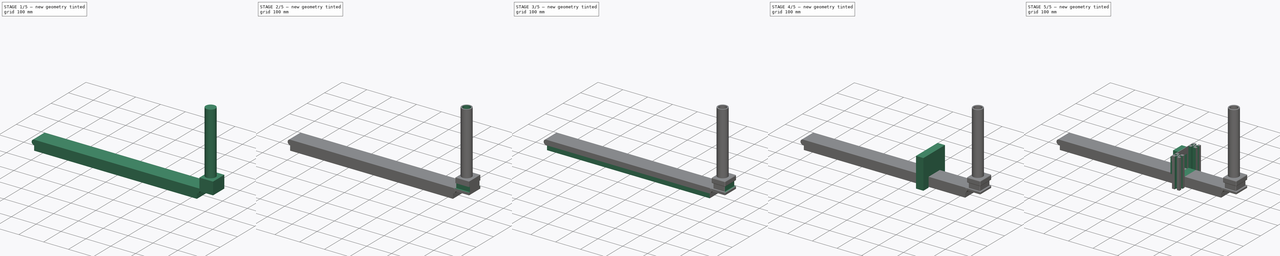
[diagram: build sequence overview — one tinted view per stage of 5, left to right]
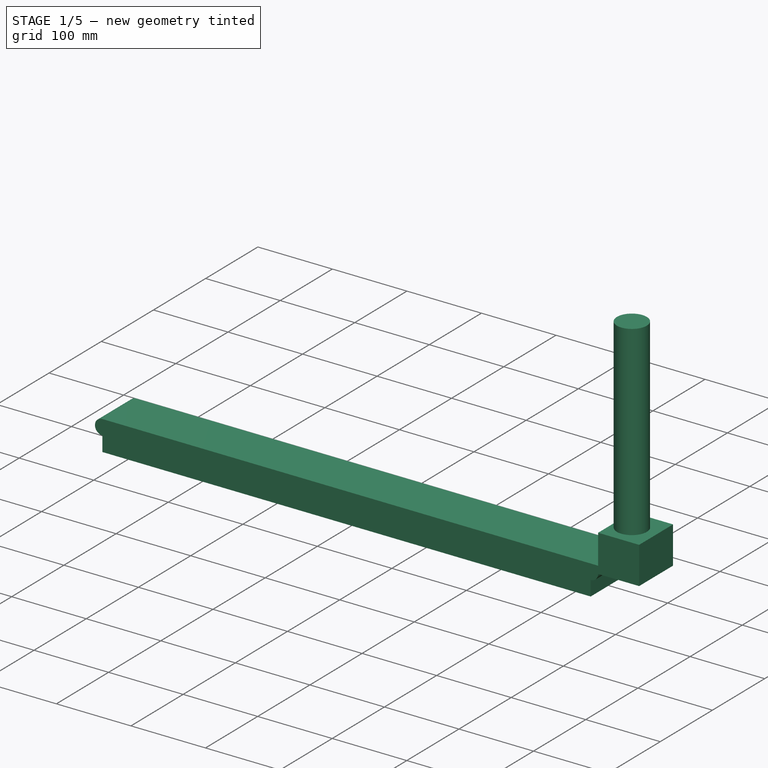
[diagram: stage 1 of 5 — iso view after this stage's code; geometry added in this stage tinted green]
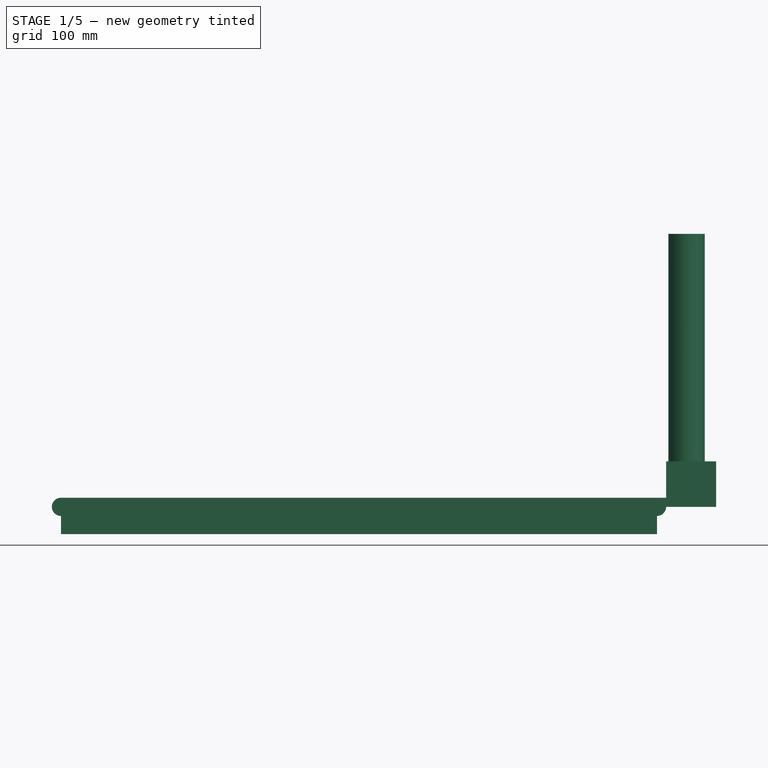
[diagram: stage 1 of 5 — front view after this stage's code; geometry added in this stage tinted green]
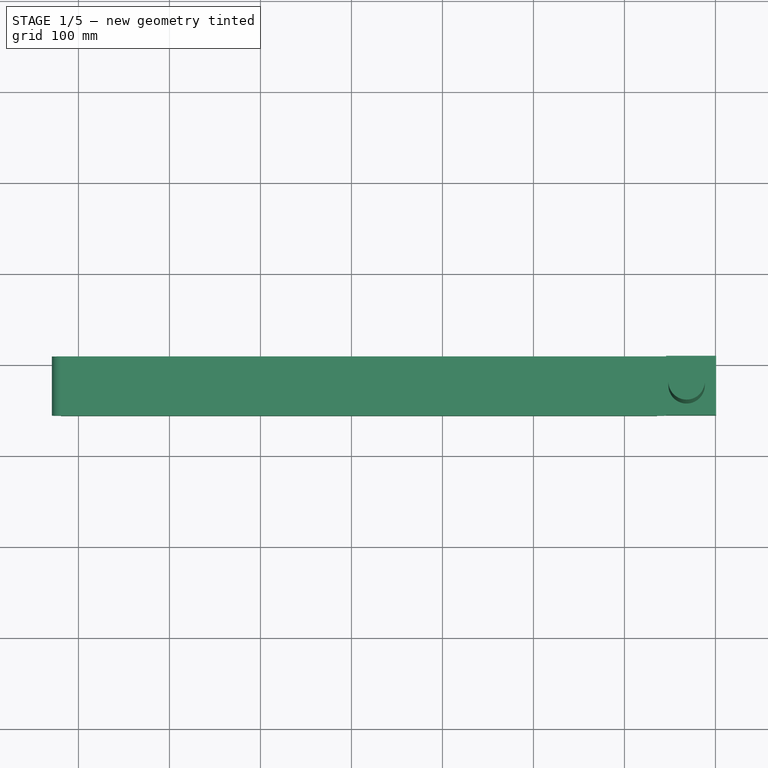
[diagram: stage 1 of 5 — top view after this stage's code; geometry added in this stage tinted green]
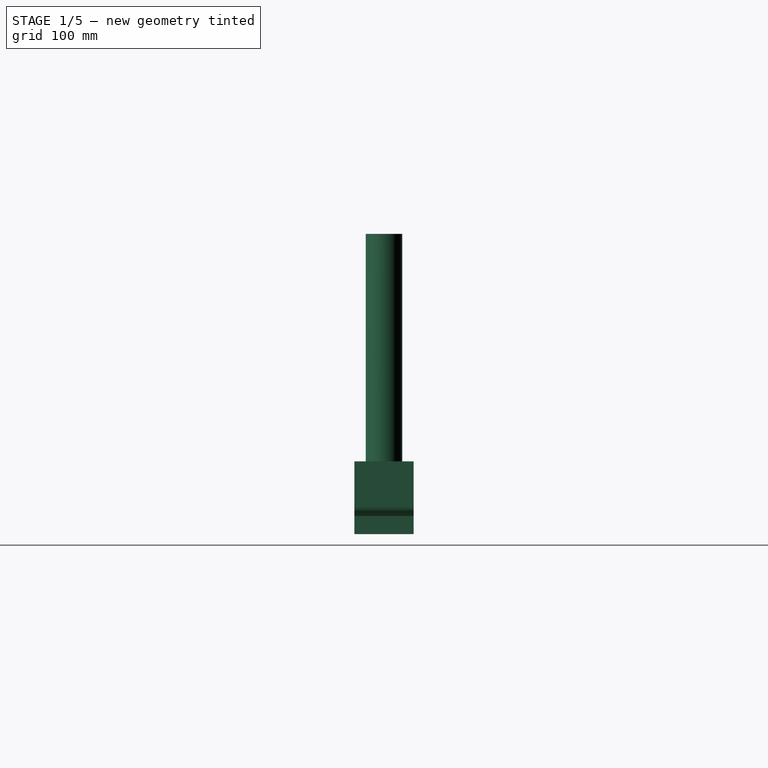
[diagram: stage 1 of 5 — right view after this stage's code; geometry added in this stage tinted green]
FCSTD DOCUMENT  (FreeCAD 1.0R39109 (Git))
Label: conveyor
License: All rights reserved
LicenseURL: https://en.wikipedia.org/wiki/All_rights_reserved
objects: Sketcher::SketchObject×19, PartDesign::Pocket×11, PartDesign::Pad×10, PartDesign::Mirrored×4, PartDesign::Fillet×4, PartDesign::Plane×1, PartDesign::Chamfer×1, PartDesign::Body×1
note: 126 computed .brp shape members not serialized (recipe doc carries the construction recipe); baked Part::Feature solids carry a one-line shape summary decoded from their .brp

FEATURE [Sketcher::SketchObject] Sketch
  ArcFitTolerance = 1e-06
  AttachmentSupport = -> [XY_Plane]
  FullyConstrained = false
  MakeInternals = false
  MapMode = 5
  sketch-geometry (4):
    g0: LineSegment StartX=-29.2114 StartY=9.08595 StartZ=0 EndX=-29.2114 EndY=-55.914 EndZ=0
    g1: LineSegment StartX=-29.2114 StartY=-55.914 StartZ=0 EndX=645.789 EndY=-55.914 EndZ=0
    g2: LineSegment StartX=645.789 StartY=-55.914 StartZ=0 EndX=645.789 EndY=9.08595 EndZ=0
    g3: LineSegment StartX=645.789 StartY=9.08595 StartZ=0 EndX=-29.2114 EndY=9.08595 EndZ=0
  constraints (10):
    c: Coincident(g0,g1)
    c: Coincident(g1,g2)
    c: Coincident(g2,g3)
    c: Coincident(g3,g0)
    c: Vertical(g0)
    c: Vertical(g2)
    c: Horizontal(g1)
    c: Horizontal(g3)
    c: Distance(g0,g2) = 675
    c: Distance(g1,g3) = 65
FEATURE [PartDesign::Pad] Pad
  Direction = (0,0,1)
  Length = 20
  Length2 = 10
  Profile = -> Sketch
  ReferenceAxis = -> Sketch [N_Axis]
  Refine = true
  Suppressed = false
  Type = 0
FEATURE [Sketcher::SketchObject] Sketch001
  ArcFitTolerance = 1e-06
  AttachmentSupport = -> [Pad]
  ExternalGeometry = -> [Pad]
  FullyConstrained = false
  MakeInternals = false
  MapMode = 5
  Placement = pos=(0,-55.914,0) rot=(1,0,0;1.5708rad)
  sketch-geometry (8):
    g0: ArcOfCircle CenterX=635.789 CenterY=10 CenterZ=0 NormalX=0 NormalY=0 NormalZ=1 AngleXU=0 Radius=10 StartAngle=4.71239 EndAngle=7.85398
    g1: LineSegment StartX=635.789 StartY=20 StartZ=0 EndX=649.116 EndY=22.863 EndZ=0
    g2: LineSegment StartX=649.116 StartY=22.863 StartZ=0 EndX=649.116 EndY=-2.72266 EndZ=0
    g3: LineSegment StartX=649.116 StartY=-2.72267 StartZ=0 EndX=635.789 EndY=0 EndZ=0
    g4: ArcOfCircle CenterX=-19.2114 CenterY=10 CenterZ=0 NormalX=0 NormalY=0 NormalZ=1 AngleXU=0 Radius=10 StartAngle=1.5708 EndAngle=4.71239
    g5: LineSegment StartX=-19.2114 StartY=20 StartZ=0 EndX=-33.8718 EndY=25.8652 EndZ=0
    g6: LineSegment StartX=-33.8718 StartY=25.8652 StartZ=0 EndX=-33.8718 EndY=-6.40606 EndZ=0
    g7: LineSegment StartX=-33.8718 StartY=-6.40606 StartZ=0 EndX=-19.2114 EndY=0 EndZ=0
  constraints (19):
    c: Radius(g0) = 10
    c: Angle(g0) = 3.14159
    c: Distance(g0,g-3) = 10
    c: Distance(g0,g-3) = 10
    c: Coincident(g1,g0)
    c: Coincident(g2,g1)
    c: Vertical(g2)
    c: Coincident(g3,g2)
    c: Coincident(g3,g0)
    c: Radius(g4) = 10
    c: Angle(g4) = 3.14159
    c: Distance(g4,g-1) = 10
    c: Distance(g4,g-4) = 10
    c: Distance(g4,g-4) = 10
    c: Coincident(g5,g4)
    c: Coincident(g6,g5)
    c: Vertical(g6)
    c: Coincident(g7,g6)
    c: Coincident(g7,g4)
FEATURE [PartDesign::Pocket] Pocket
  BaseFeature = -> Pad
  Direction = (0,1,-2e-16)
  Length = 70
  Length2 = 5
  Profile = -> Sketch001
  ReferenceAxis = -> Sketch001 [N_Axis]
  Refine = true
  Suppressed = false
  Type = 0
FEATURE [Sketcher::SketchObject] Sketch002
  ArcFitTolerance = 1e-06
  AttachmentSupport = -> [Pocket]
  ExternalGeometry = -> [Pocket]
  FullyConstrained = true
  MakeInternals = false
  MapMode = 5
  Placement = pos=(0,-55.914,0) rot=(1,0,0;1.5708rad)
  sketch-geometry (4):
    g0: LineSegment StartX=700.789 StartY=10 StartZ=0 EndX=700.789 EndY=20 EndZ=0
    g1: LineSegment StartX=700.789 StartY=20 StartZ=0 EndX=635.789 EndY=20 EndZ=0
    g2: LineSegment StartX=635.789 StartY=20 StartZ=0 EndX=635.789 EndY=10 EndZ=0
    g3: LineSegment StartX=635.789 StartY=10 StartZ=0 EndX=700.789 EndY=10 EndZ=0
  constraints (12):
    c: Coincident(g0,g1)
    c: Coincident(g1,g2)
    c: Coincident(g2,g3)
    c: Coincident(g3,g0)
    c: Vertical(g0)
    c: Vertical(g2)
    c: Horizontal(g1)
    c: Horizontal(g3)
    c: Distance(g0,g2) = 65
    c: Distance(g1,g3) = 10
    c: Distance(g-3,g3) = 10
    c: DistanceX(g-3,g1) = 655
FEATURE [PartDesign::Pad] Pad001
  BaseFeature = -> Pocket
  Direction = (0,-1,2e-16)
  Length = 65
  Length2 = 10
  Profile = -> Sketch002
  ReferenceAxis = -> Sketch002 [N_Axis]
  Refine = true
  Reversed = true
  Suppressed = false
  Type = 0
FEATURE [Sketcher::SketchObject] Sketch003
  ArcFitTolerance = 1e-06
  AttachmentSupport = -> [Pad001]
  ExternalGeometry = -> [Pad001]
  FullyConstrained = true
  MakeInternals = false
  MapMode = 5
  Placement = pos=(0,0,0) rot=(1,0,0;3.14159rad)
  sketch-geometry (4):
    g0: LineSegment StartX=-19.2114 StartY=55.914 StartZ=0 EndX=-19.2114 EndY=-9.08595 EndZ=0
    g1: LineSegment StartX=-19.2114 StartY=-9.08595 StartZ=0 EndX=635.789 EndY=-9.08595 EndZ=0
    g2: LineSegment StartX=635.789 StartY=-9.08595 StartZ=0 EndX=635.789 EndY=55.914 EndZ=0
    g3: LineSegment StartX=635.789 StartY=55.914 StartZ=0 EndX=-19.2114 EndY=55.914 EndZ=0
  constraints (10):
    c: Coincident(g0,g1)
    c: Coincident(g1,g2)
    c: Coincident(g2,g3)
    c: Coincident(g3,g0)
    c: Vertical(g0)
    c: Vertical(g2)
    c: Horizontal(g1)
    c: Horizontal(g3)
    c: Coincident(g0,g-3)
    c: Coincident(g1,g-5)
FEATURE [PartDesign::Pad] Pad002
  BaseFeature = -> Pad001
  Direction = (0,0,-1)
  Length = 20
  Length2 = 10
  Profile = -> Sketch003
  ReferenceAxis = -> Sketch003 [N_Axis]
  Refine = true
  Suppressed = false
  Type = 0
FEATURE [Sketcher::SketchObject] Sketch004
  ArcFitTolerance = 1e-06
  AttachmentSupport = -> [Pad002]
  ExternalGeometry = -> [Pad002]
  FullyConstrained = true
  MakeInternals = false
  MapMode = 5
  Placement = pos=(0,0,20) rot=(0,0,1;0rad)
  sketch-geometry (4):
    g0: LineSegment StartX=700.789 StartY=9.08595 StartZ=0 EndX=645.789 EndY=9.08595 EndZ=0
    g1: LineSegment StartX=645.789 StartY=9.08595 StartZ=0 EndX=645.789 EndY=-55.914 EndZ=0
    g2: LineSegment StartX=645.789 StartY=-55.914 StartZ=0 EndX=700.789 EndY=-55.914 EndZ=0
    g3: LineSegment StartX=700.789 StartY=-55.914 StartZ=0 EndX=700.789 EndY=9.08595 EndZ=0
  constraints (11):
    c: Coincident(g0,g1)
    c: Coincident(g1,g2)
    c: Coincident(g2,g3)
    c: Coincident(g3,g0)
    c: Horizontal(g0)
    c: Horizontal(g2)
    c: Vertical(g1)
    c: Vertical(g3)
    c: Distance(g1,g3) = 55
    c: Coincident(g0,g-4)
    c: PointOnObject(g1,g-5)
FEATURE [PartDesign::Pad] Pad003
  BaseFeature = -> Pad002
  Direction = (0,0,1)
  Length = 40
  Length2 = 10
  Profile = -> Sketch004
  ReferenceAxis = -> Sketch004 [N_Axis]
  Refine = true
  Suppressed = false
  Type = 0
FEATURE [Sketcher::SketchObject] Sketch005
  ArcFitTolerance = 1e-06
  AttachmentSupport = -> [Pad003]
  ExternalGeometry = -> [Pad003]
  FullyConstrained = true
  MakeInternals = false
  MapMode = 5
  Placement = pos=(0,0,60) rot=(0,0,1;0rad)
  sketch-geometry (1):
    g0: Circle CenterX=668.289 CenterY=-23.414 CenterZ=0 NormalX=0 NormalY=0 NormalZ=1 AngleXU=0 Radius=20
  constraints (3):
    c: Diameter(g0) = 40
    c: Distance(g0,g-3) = 32.5
    c: Distance(g0,g-4) = 32.5
FEATURE [PartDesign::Pad] Pad004
  BaseFeature = -> Pad003
  Direction = (0,0,1)
  Length = 250
  Length2 = 10
  Profile = -> Sketch005
  ReferenceAxis = -> Sketch005 [N_Axis]
  Refine = true
  Suppressed = false
  Type = 0
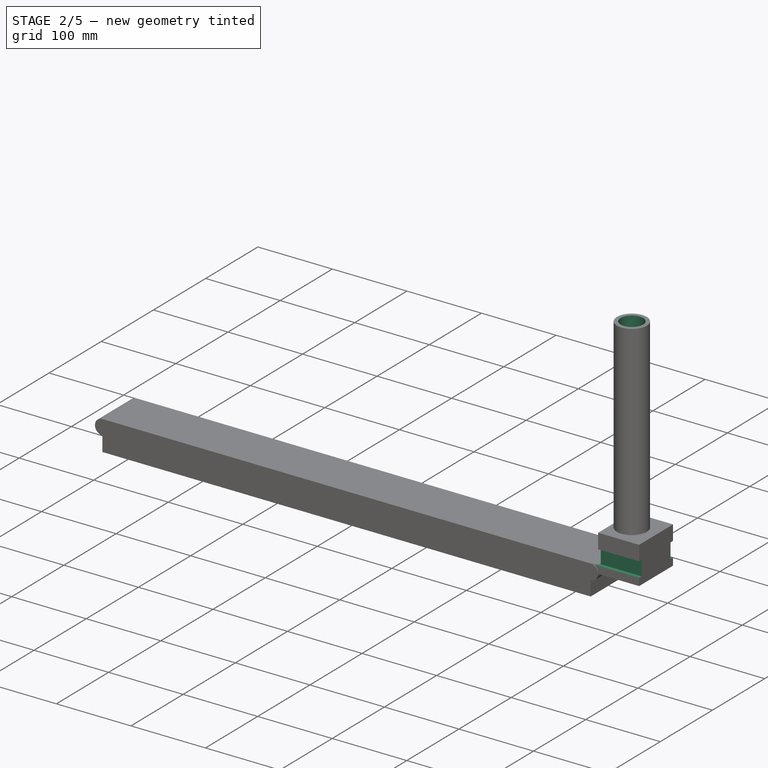
[diagram: stage 2 of 5 — iso view after this stage's code; geometry added in this stage tinted green]
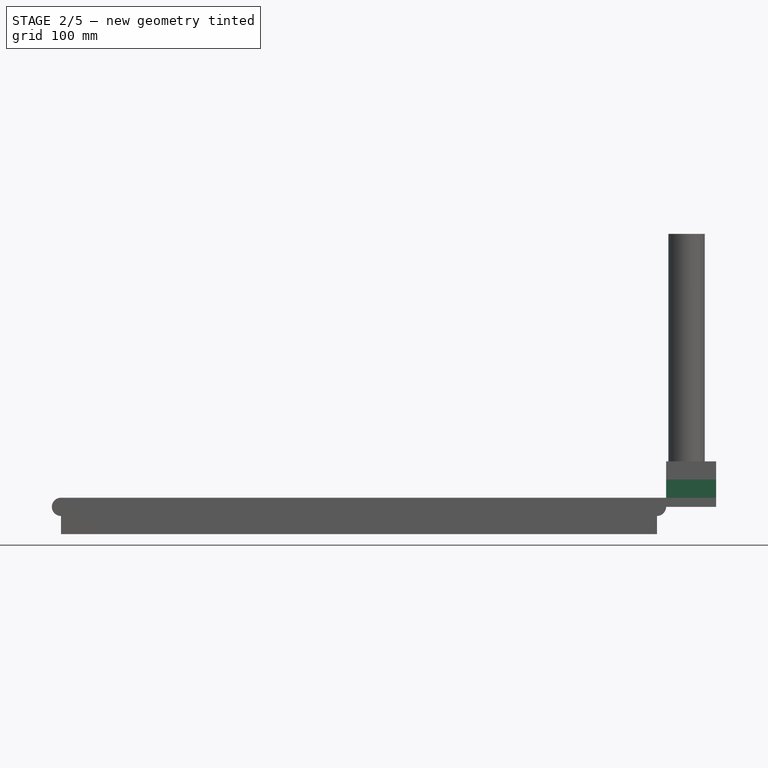
[diagram: stage 2 of 5 — front view after this stage's code; geometry added in this stage tinted green]
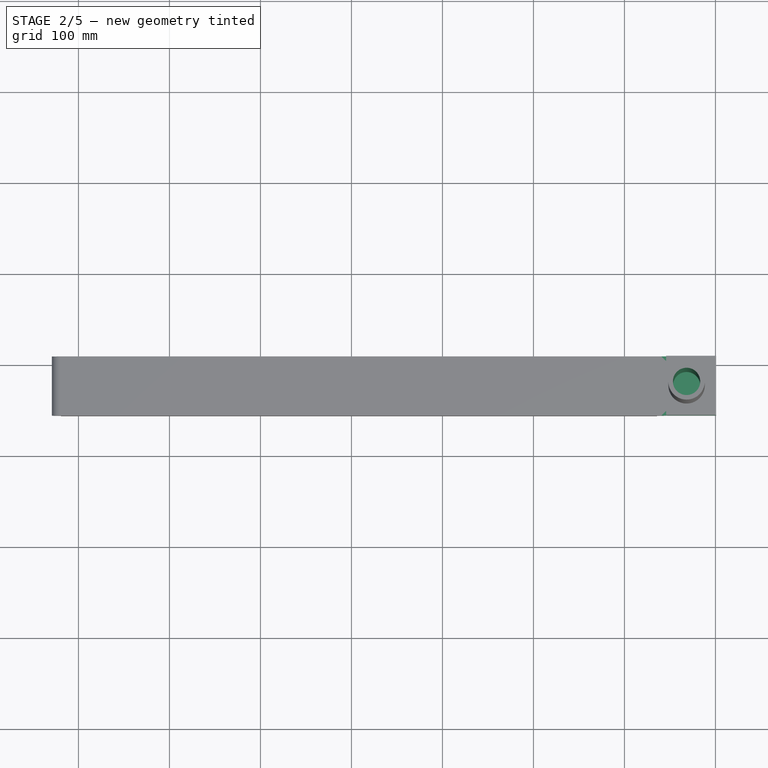
[diagram: stage 2 of 5 — top view after this stage's code; geometry added in this stage tinted green]
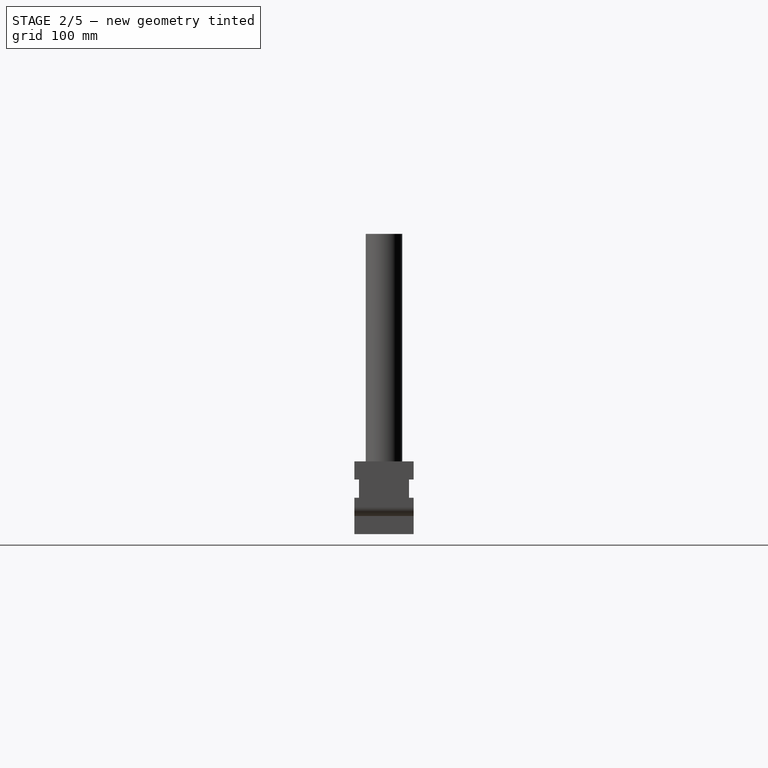
[diagram: stage 2 of 5 — right view after this stage's code; geometry added in this stage tinted green]
FEATURE [Sketcher::SketchObject] Sketch006
  ArcFitTolerance = 1e-06
  AttachmentSupport = -> [Pad004]
  ExternalGeometry = -> [Pad004]
  FullyConstrained = true
  MakeInternals = false
  MapMode = 5
  Placement = pos=(0,0,310) rot=(0,0,1;0rad)
  sketch-geometry (1):
    g0: Circle CenterX=668.289 CenterY=-23.414 CenterZ=0 NormalX=0 NormalY=0 NormalZ=1 AngleXU=0 Radius=15
  constraints (2):
    c: Diameter(g0) = 30
    c: Coincident(g0,g-3)
FEATURE [PartDesign::Pocket] Pocket001
  BaseFeature = -> Pad004
  Direction = (0,0,-1)
  Length = 290
  Length2 = 5
  Profile = -> Sketch006
  ReferenceAxis = -> Sketch006 [N_Axis]
  Refine = true
  Suppressed = false
  Type = 0
FEATURE [Sketcher::SketchObject] Sketch007
  ArcFitTolerance = 1e-06
  AttachmentSupport = -> [Pocket001]
  ExternalGeometry = -> [Pocket001]
  FullyConstrained = true
  MakeInternals = false
  MapMode = 5
  Placement = pos=(0,-55.914,0) rot=(1,0,0;1.5708rad)
  sketch-geometry (4):
    g0: ArcOfCircle CenterX=635.789 CenterY=10 CenterZ=0 NormalX=0 NormalY=0 NormalZ=1 AngleXU=0 Radius=10 StartAngle=4e-16 EndAngle=1.5708
    g1: ArcOfCircle CenterX=635.789 CenterY=10 CenterZ=0 NormalX=0 NormalY=0 NormalZ=1 AngleXU=0 Radius=11 StartAngle=0 EndAngle=1.5708
    g2: LineSegment StartX=635.789 StartY=20 StartZ=0 EndX=635.789 EndY=21 EndZ=0
    g3: LineSegment StartX=646.789 StartY=10 StartZ=0 EndX=645.789 EndY=10 EndZ=0
  constraints (11):
    c: Coincident(g0,g-4)
    c: PointOnObject(g0,g-3)
    c: Coincident(g0,g-5)
    c: Radius(g1) = 11
    c: Angle(g1) = 1.5708
    c: Coincident(g1,g0)
    c: PointOnObject(g1,g-5)
    c: Coincident(g2,g0)
    c: Coincident(g2,g1)
    c: Coincident(g3,g1)
    c: Coincident(g3,g0)
FEATURE [PartDesign::Pocket] Pocket002
  BaseFeature = -> Pocket001
  Direction = (0,1,-2e-16)
  Length = 1
  Length2 = 5
  Profile = -> Sketch007
  ReferenceAxis = -> Sketch007 [N_Axis]
  Refine = true
  Suppressed = false
  Type = 0
FEATURE [PartDesign::Plane] DatumPlane
  AttachmentOffset = pos=(0,0,-32.5) rot=(0,0,1;0rad)
  AttachmentSupport = -> [Pocket002]
  Length = 828.904
  MapMode = 5
  Placement = pos=(0,-23.414,-7.2e-15) rot=(1,0,0;1.5708rad)
  ResizeMode = 0
  Width = 433.904
FEATURE [PartDesign::Mirrored] Mirrored
  BaseFeature = -> Pocket002
  MirrorPlane = -> DatumPlane
  Originals = -> [Pocket002]
  Refine = true
  Suppressed = false
  TransformMode = 0
FEATURE [Sketcher::SketchObject] Sketch008
  ArcFitTolerance = 1e-06
  AttachmentSupport = -> [Mirrored]
  ExternalGeometry = -> [Mirrored]
  FullyConstrained = true
  MakeInternals = false
  MapMode = 5
  Placement = pos=(645.789,0,0) rot=(0.57735,-0.57735,-0.57735;2.0944rad)
  sketch-geometry (4):
    g0: LineSegment StartX=2.91405 StartY=40 StartZ=0 EndX=2.91405 EndY=20 EndZ=0
    g1: LineSegment StartX=2.91405 StartY=20 StartZ=0 EndX=43.914 EndY=20 EndZ=0
    g2: LineSegment StartX=43.914 StartY=20 StartZ=0 EndX=43.914 EndY=40 EndZ=0
    g3: LineSegment StartX=43.914 StartY=40 StartZ=0 EndX=2.91405 EndY=40 EndZ=0
  constraints (12):
    c: Coincident(g0,g1)
    c: Coincident(g1,g2)
    c: Coincident(g2,g3)
    c: Coincident(g3,g0)
    c: Vertical(g0)
    c: Vertical(g2)
    c: Horizontal(g1)
    c: Horizontal(g3)
    c: Distance(g3,g-3) = 20
    c: DistanceY(g2,g2) = 20
    c: Distance(g-4,g0) = 12
    c: Distance(g-5,g2) = 12
FEATURE [PartDesign::Pocket] Pocket003
  BaseFeature = -> Mirrored
  Direction = (1,0,0)
  Length = 45
  Length2 = 5
  Profile = -> Sketch008
  ReferenceAxis = -> Sketch008 [N_Axis]
  Refine = true
  Suppressed = false
  Type = 0
FEATURE [Sketcher::SketchObject] Sketch009
  ArcFitTolerance = 1e-06
  AttachmentSupport = -> [Pocket003]
  ExternalGeometry = -> [Pocket003]
  FullyConstrained = true
  MakeInternals = false
  MapMode = 5
  Placement = pos=(0,-55.914,0) rot=(1,0,0;1.5708rad)
  sketch-geometry (4):
    g0: LineSegment StartX=645.789 StartY=20 StartZ=0 EndX=715.789 EndY=20 EndZ=0
    g1: LineSegment StartX=715.789 StartY=20 StartZ=0 EndX=715.789 EndY=40 EndZ=0
    g2: LineSegment StartX=715.789 StartY=40 StartZ=0 EndX=645.789 EndY=40 EndZ=0
    g3: LineSegment StartX=645.789 StartY=40 StartZ=0 EndX=645.789 EndY=20 EndZ=0
  constraints (11):
    c: Coincident(g0,g1)
    c: Coincident(g1,g2)
    c: Coincident(g2,g3)
    c: Coincident(g3,g0)
    c: Horizontal(g0)
    c: Horizontal(g2)
    c: Vertical(g1)
    c: Vertical(g3)
    c: Distance(g1,g3) = 70
    c: Distance(g0,g2) = 20
    c: Coincident(g0,g-3)
FEATURE [PartDesign::Pocket] Pocket004
  BaseFeature = -> Pocket003
  Direction = (0,1,-2e-16)
  Length = 5
  Length2 = 5
  Profile = -> Sketch009
  ReferenceAxis = -> Sketch009 [N_Axis]
  Refine = true
  Suppressed = false
  Type = 0
FEATURE [PartDesign::Mirrored] Mirrored001
  BaseFeature = -> Pocket004
  MirrorPlane = -> DatumPlane
  Originals = -> [Pocket004]
  Refine = true
  Suppressed = false
  TransformMode = 0
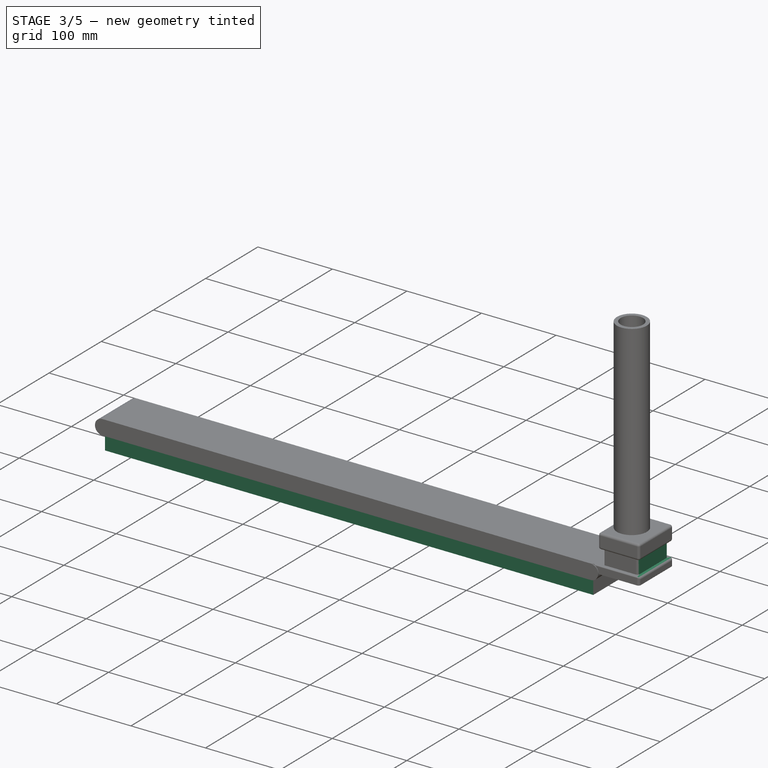
[diagram: stage 3 of 5 — iso view after this stage's code; geometry added in this stage tinted green]
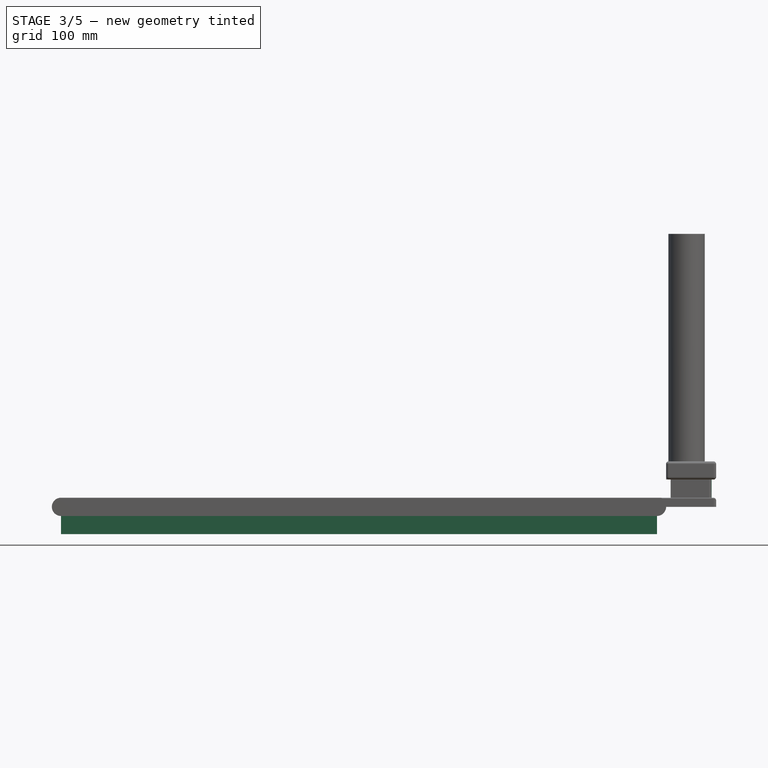
[diagram: stage 3 of 5 — front view after this stage's code; geometry added in this stage tinted green]
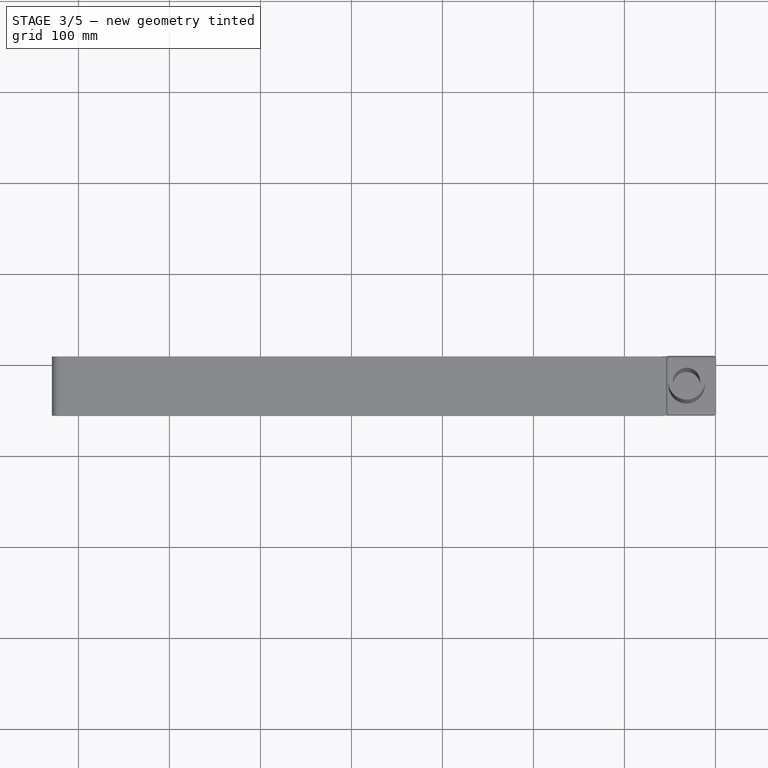
[diagram: stage 3 of 5 — top view after this stage's code; geometry added in this stage tinted green]
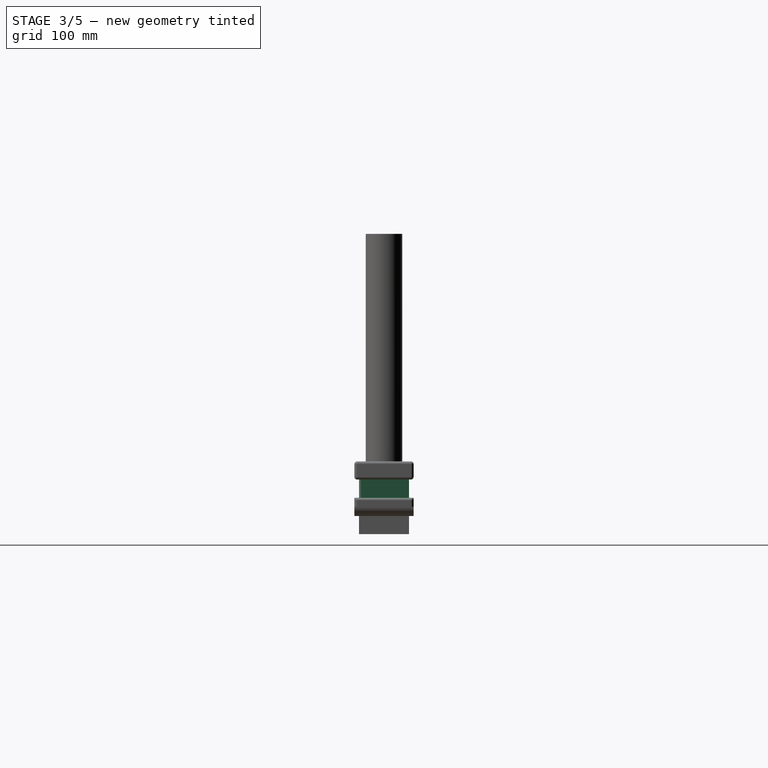
[diagram: stage 3 of 5 — right view after this stage's code; geometry added in this stage tinted green]
FEATURE [Sketcher::SketchObject] Sketch010
  ArcFitTolerance = 1e-06
  AttachmentSupport = -> [Mirrored001]
  ExternalGeometry = -> [Mirrored001]
  FullyConstrained = true
  MakeInternals = false
  MapMode = 5
  Placement = pos=(700.789,0,0) rot=(0.57735,0.57735,0.57735;2.0944rad)
  sketch-geometry (4):
    g0: LineSegment StartX=-50.914 StartY=40 StartZ=0 EndX=-50.914 EndY=20 EndZ=0
    g1: LineSegment StartX=-50.914 StartY=20 StartZ=0 EndX=4.08595 EndY=20 EndZ=0
    g2: LineSegment StartX=4.08595 StartY=20 StartZ=0 EndX=4.08595 EndY=40 EndZ=0
    g3: LineSegment StartX=4.08595 StartY=40 StartZ=0 EndX=-50.914 EndY=40 EndZ=0
  constraints (10):
    c: Coincident(g0,g1)
    c: Coincident(g1,g2)
    c: Coincident(g2,g3)
    c: Coincident(g3,g0)
    c: Vertical(g0)
    c: Vertical(g2)
    c: Horizontal(g1)
    c: Horizontal(g3)
    c: Coincident(g0,g-3)
    c: Coincident(g1,g-4)
FEATURE [PartDesign::Pocket] Pocket005
  BaseFeature = -> Mirrored001
  Direction = (-1,0,0)
  Length = 5
  Length2 = 5
  Profile = -> Sketch010
  ReferenceAxis = -> Sketch010 [N_Axis]
  Refine = true
  Suppressed = false
  Type = 0
FEATURE [PartDesign::Fillet] Fillet
  Base = -> Pocket005 [Edge13,Edge12,Edge68,Edge79,Edge87,Edge78,Edge84,Edge83,Edge80,Edge81,Edge77,Edge61,Edge63,Edge62,Edge2,Edge57,Edge64,Edge60]
  BaseFeature = -> Pocket005
  Radius = 3
  Refine = true
  SupportTransform = false
  Suppressed = false
  UseAllEdges = false
FEATURE [PartDesign::Fillet] Fillet001
  Base = -> Fillet [Edge4,Edge19]
  BaseFeature = -> Fillet
  Radius = 1
  Refine = true
  SupportTransform = false
  Suppressed = false
  UseAllEdges = false
FEATURE [Sketcher::SketchObject] Sketch011
  ArcFitTolerance = 1e-06
  AttachmentSupport = -> [Fillet001]
  ExternalGeometry = -> [Fillet001]
  FullyConstrained = true
  MakeInternals = false
  MapMode = 5
  Placement = pos=(0,-55.914,0) rot=(1,0,0;1.5708rad)
  sketch-geometry (4):
    g0: LineSegment StartX=635.789 StartY=0 StartZ=0 EndX=-19.2114 EndY=0 EndZ=0
    g1: LineSegment StartX=-19.2114 StartY=0 StartZ=0 EndX=-19.2114 EndY=-20 EndZ=0
    g2: LineSegment StartX=-19.2114 StartY=-20 StartZ=0 EndX=635.789 EndY=-20 EndZ=0
    g3: LineSegment StartX=635.789 StartY=-20 StartZ=0 EndX=635.789 EndY=0 EndZ=0
  constraints (10):
    c: Coincident(g0,g1)
    c: Coincident(g1,g2)
    c: Coincident(g2,g3)
    c: Coincident(g3,g0)
    c: Horizontal(g0)
    c: Horizontal(g2)
    c: Vertical(g1)
    c: Vertical(g3)
    c: Coincident(g0,g-5)
    c: Coincident(g1,g-4)
FEATURE [PartDesign::Pocket] Pocket006
  BaseFeature = -> Fillet001
  Direction = (0,1,-2e-16)
  Length = 5
  Length2 = 5
  Profile = -> Sketch011
  ReferenceAxis = -> Sketch011 [N_Axis]
  Refine = true
  Suppressed = false
  Type = 0
FEATURE [PartDesign::Mirrored] Mirrored002
  BaseFeature = -> Pocket006
  MirrorPlane = -> DatumPlane
  Originals = -> [Pocket006]
  Refine = true
  Suppressed = false
  TransformMode = 0
FEATURE [Sketcher::SketchObject] Sketch012
  ArcFitTolerance = 1e-06
  AttachmentSupport = -> [Mirrored002]
  ExternalGeometry = -> [Mirrored002]
  FullyConstrained = true
  MakeInternals = false
  MapMode = 5
  Placement = pos=(645.789,0,0) rot=(0.57735,-0.57735,-0.57735;2.0944rad)
  sketch-geometry (4):
    g0: LineSegment StartX=-4.08595 StartY=20 StartZ=0 EndX=50.914 EndY=20 EndZ=0
    g1: LineSegment StartX=50.914 StartY=20 StartZ=0 EndX=50.914 EndY=40 EndZ=0
    g2: LineSegment StartX=50.914 StartY=40 StartZ=0 EndX=-4.08595 EndY=40 EndZ=0
    g3: LineSegment StartX=-4.08595 StartY=40 StartZ=0 EndX=-4.08595 EndY=20 EndZ=0
  constraints (10):
    c: Coincident(g0,g1)
    c: Coincident(g1,g2)
    c: Coincident(g2,g3)
    c: Coincident(g3,g0)
    c: Horizontal(g0)
    c: Horizontal(g2)
    c: Vertical(g1)
    c: Vertical(g3)
    c: Coincident(g0,g-3)
    c: Coincident(g1,g-5)
FEATURE [PartDesign::Pocket] Pocket007
  BaseFeature = -> Mirrored002
  Direction = (1,0,0)
  Length = 5
  Length2 = 5
  Profile = -> Sketch012
  ReferenceAxis = -> Sketch012 [N_Axis]
  Refine = true
  Suppressed = false
  Type = 0
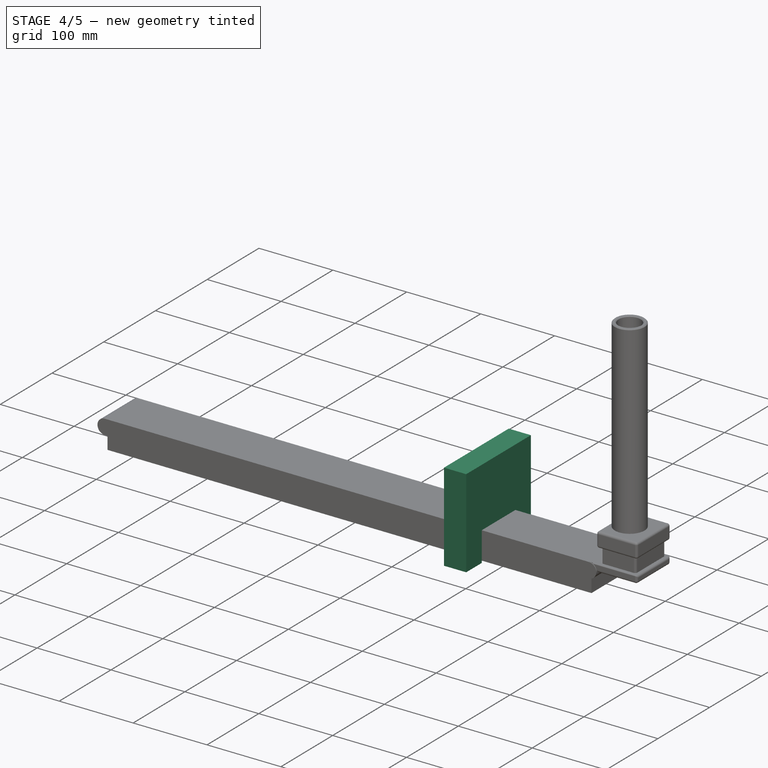
[diagram: stage 4 of 5 — iso view after this stage's code; geometry added in this stage tinted green]
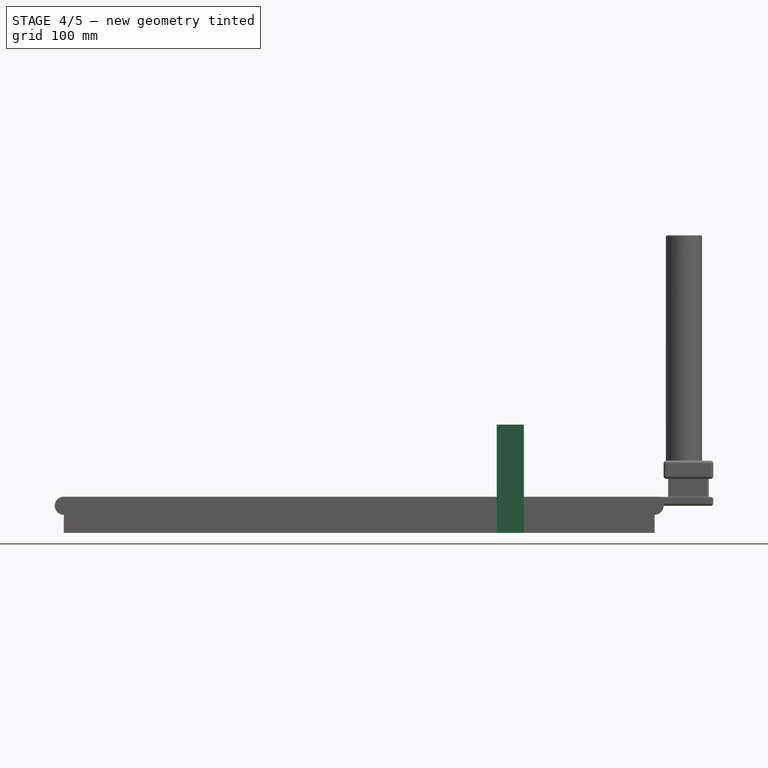
[diagram: stage 4 of 5 — front view after this stage's code; geometry added in this stage tinted green]
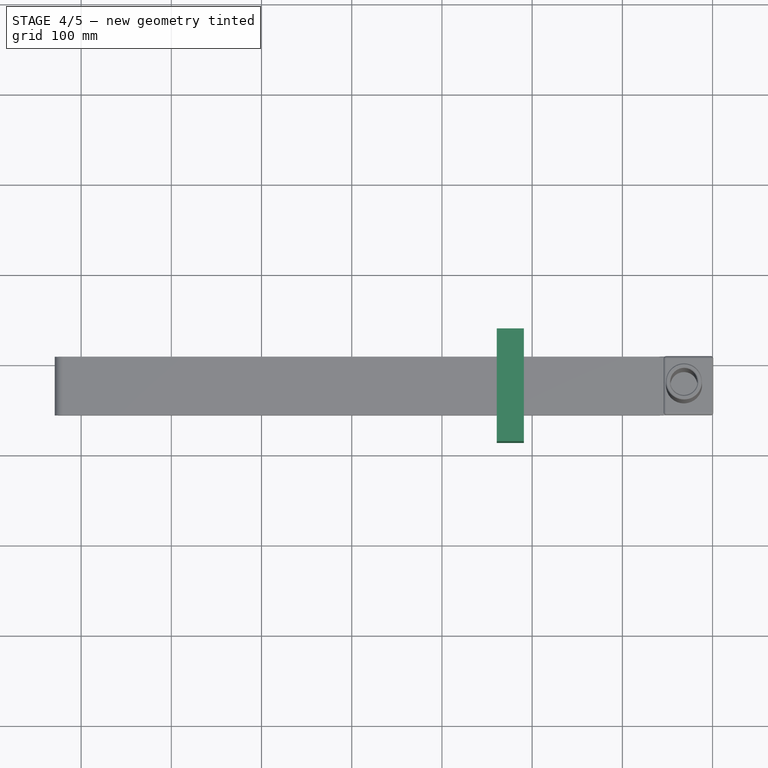
[diagram: stage 4 of 5 — top view after this stage's code; geometry added in this stage tinted green]
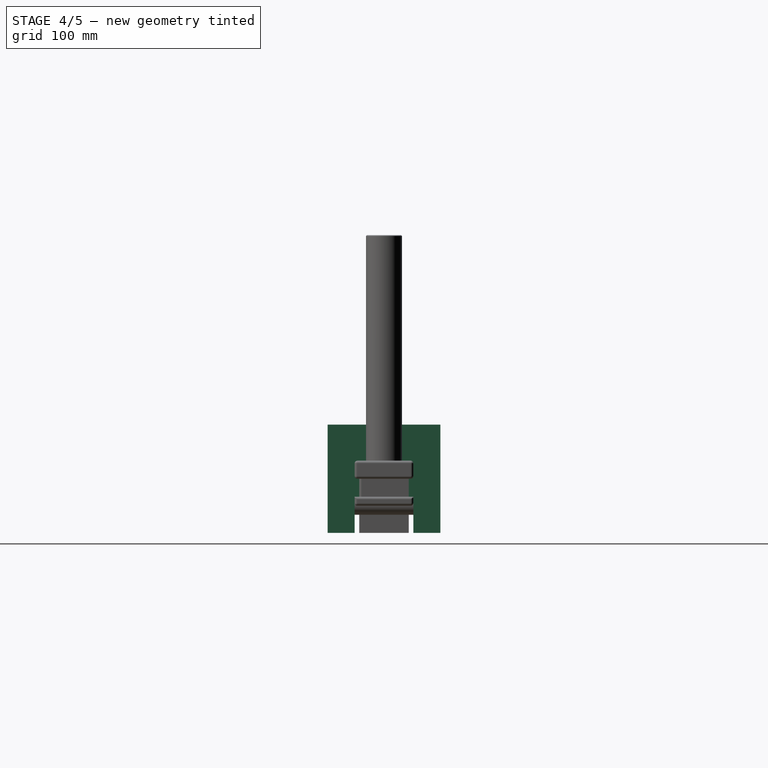
[diagram: stage 4 of 5 — right view after this stage's code; geometry added in this stage tinted green]
FEATURE [PartDesign::Fillet] Fillet002
  Base = -> Pocket007 [Edge27,Edge18]
  BaseFeature = -> Pocket007
  Radius = 3
  Refine = true
  SupportTransform = false
  Suppressed = false
  UseAllEdges = false
FEATURE [PartDesign::Fillet] Fillet003
  Base = -> Fillet002 [Edge167,Edge160,Edge164]
  BaseFeature = -> Fillet002
  Radius = 3
  Refine = true
  SupportTransform = false
  Suppressed = false
  UseAllEdges = false
FEATURE [PartDesign::Chamfer] Chamfer
  Angle = 45
  Base = -> Fillet003 [Edge166,Edge142]
  BaseFeature = -> Fillet003
  ChamferType = 0
  FlipDirection = false
  Refine = true
  Size = 1
  Size2 = 1
  SupportTransform = false
  Suppressed = false
  UseAllEdges = false
FEATURE [Sketcher::SketchObject] Sketch013
  ArcFitTolerance = 1e-06
  AttachmentSupport = -> [Chamfer]
  ExternalGeometry = -> [Chamfer]
  FullyConstrained = true
  MakeInternals = false
  MapMode = 5
  Placement = pos=(0,0,20) rot=(0,0,1;0rad)
  sketch-geometry (4):
    g0: LineSegment StartX=460.789 StartY=39.086 StartZ=0 EndX=460.789 EndY=-85.914 EndZ=0
    g1: LineSegment StartX=460.789 StartY=-85.914 StartZ=0 EndX=490.789 EndY=-85.914 EndZ=0
    g2: LineSegment StartX=490.789 StartY=-85.914 StartZ=0 EndX=490.789 EndY=39.086 EndZ=0
    g3: LineSegment StartX=490.789 StartY=39.086 StartZ=0 EndX=460.789 EndY=39.086 EndZ=0
  constraints (12):
    c: Coincident(g0,g1)
    c: Coincident(g1,g2)
    c: Coincident(g2,g3)
    c: Coincident(g3,g0)
    c: Vertical(g0)
    c: Vertical(g2)
    c: Horizontal(g1)
    c: Horizontal(g3)
    c: Distance(g2,g-6) = 145
    c: Distance(g0,g2) = 30
    c: Distance(g1,g3) = 125
    c: Distance(g3,g-3) = 30
FEATURE [PartDesign::Pad] Pad005
  BaseFeature = -> Chamfer
  Direction = (0,0,1)
  Length = 80
  Length2 = 10
  Profile = -> Sketch013
  ReferenceAxis = -> Sketch013 [N_Axis]
  Refine = true
  Suppressed = false
  Type = 0
FEATURE [Sketcher::SketchObject] Sketch014
  ArcFitTolerance = 1e-06
  AttachmentSupport = -> [Pad005]
  ExternalGeometry = -> [Pad005]
  FullyConstrained = true
  MakeInternals = false
  MapMode = 5
  Placement = pos=(460.789,0,0) rot=(0.57735,-0.57735,-0.57735;2.0944rad)
  sketch-geometry (4):
    g0: LineSegment StartX=-9.08595 StartY=100 StartZ=0 EndX=-9.08595 EndY=20 EndZ=0
    g1: LineSegment StartX=-9.08595 StartY=20 StartZ=0 EndX=55.914 EndY=20 EndZ=0
    g2: LineSegment StartX=55.914 StartY=20 StartZ=0 EndX=55.914 EndY=100 EndZ=0
    g3: LineSegment StartX=55.914 StartY=100 StartZ=0 EndX=-9.08595 EndY=100 EndZ=0
  constraints (12):
    c: Coincident(g0,g1)
    c: Coincident(g1,g2)
    c: Coincident(g2,g3)
    c: Coincident(g3,g0)
    c: Vertical(g0)
    c: Vertical(g2)
    c: Horizontal(g1)
    c: Horizontal(g3)
    c: Distance(g-4,g0) = 30
    c: Distance(g-5,g2) = 30
    c: Distance(g1,g3) = 80
    c: Distance(g1,g-3) = 80
FEATURE [PartDesign::Pad] Pad006
  BaseFeature = -> Pad005
  Direction = (0,0,-1)
  Length = 40
  Length2 = 10
  Profile = -> Pad005 [Face77]
  Refine = true
  Suppressed = false
  Type = 0
FEATURE [PartDesign::Pad] Pad007
  BaseFeature = -> Pad006
  Direction = (0,0,-1)
  Length = 40
  Length2 = 10
  Profile = -> Pad006 [Face72]
  Refine = true
  Suppressed = false
  Type = 0
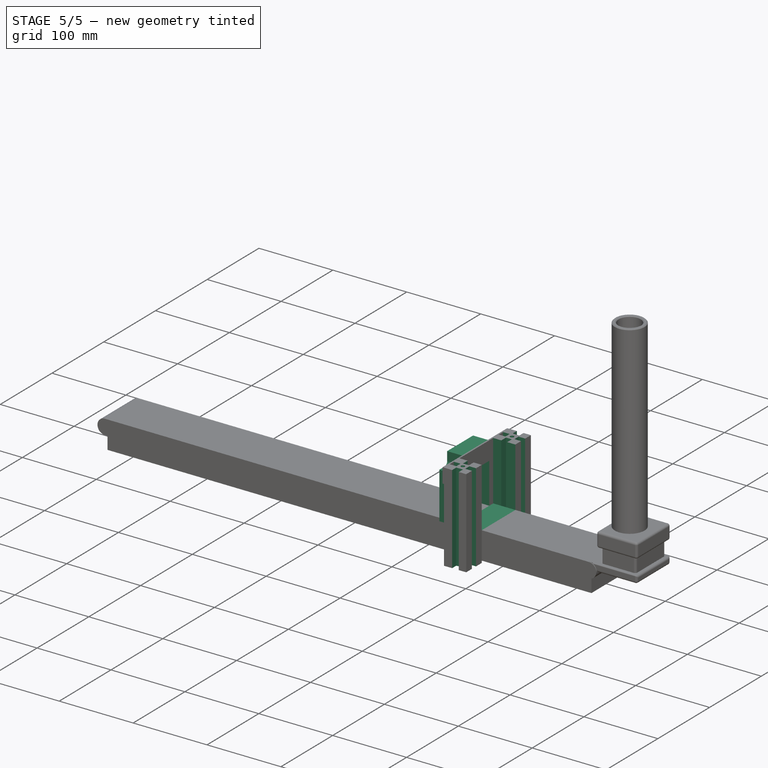
[diagram: stage 5 of 5 — iso view after this stage's code; geometry added in this stage tinted green]
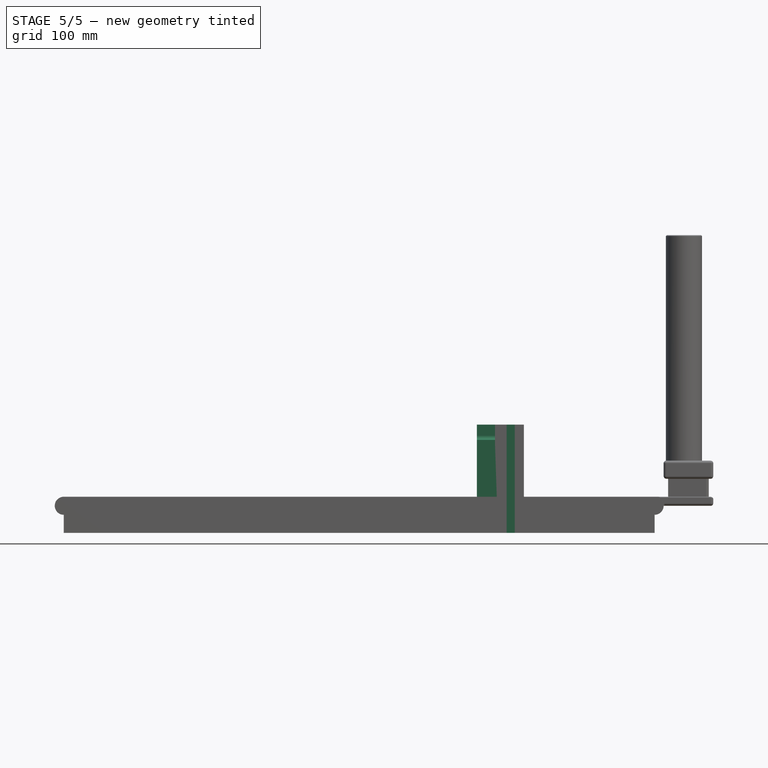
[diagram: stage 5 of 5 — front view after this stage's code; geometry added in this stage tinted green]
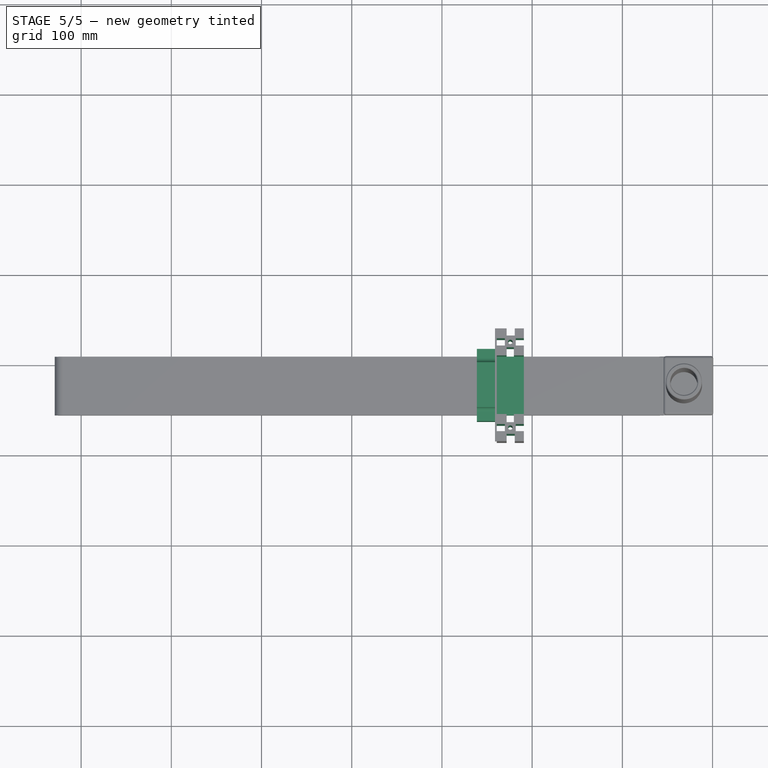
[diagram: stage 5 of 5 — top view after this stage's code; geometry added in this stage tinted green]
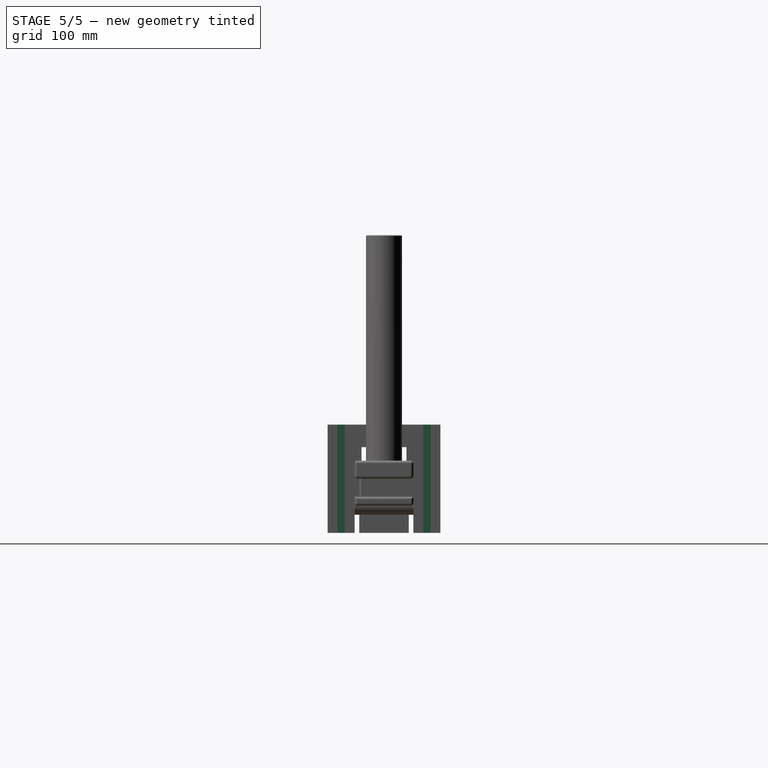
[diagram: stage 5 of 5 — right view after this stage's code; geometry added in this stage tinted green]
FEATURE [PartDesign::Pocket] Pocket008
  BaseFeature = -> Pad007
  Direction = (1,0,0)
  Length = 30
  Length2 = 5
  Profile = -> Sketch014
  ReferenceAxis = -> Sketch014 [N_Axis]
  Refine = true
  Suppressed = false
  Type = 0
FEATURE [Sketcher::SketchObject] Sketch015
  ArcFitTolerance = 1e-06
  AttachmentSupport = -> [Pocket008]
  ExternalGeometry = -> [Pocket008]
  FullyConstrained = true
  MakeInternals = false
  MapMode = 5
  Placement = pos=(0,0,100) rot=(0,0,1;0rad)
  sketch-geometry (17):
    g0: LineSegment StartX=460.789 StartY=-66.914 StartZ=0 EndX=460.789 EndY=-74.914 EndZ=0
    g1: LineSegment StartX=460.789 StartY=-74.914 StartZ=0 EndX=469.789 EndY=-74.914 EndZ=0
    g2: LineSegment StartX=469.789 StartY=-74.914 StartZ=0 EndX=469.789 EndY=-66.914 EndZ=0
    g3: LineSegment StartX=469.789 StartY=-66.914 StartZ=0 EndX=460.789 EndY=-66.914 EndZ=0
    g4: LineSegment StartX=479.789 StartY=-55.914 StartZ=0 EndX=471.789 EndY=-55.914 EndZ=0
    g5: LineSegment StartX=471.789 StartY=-55.914 StartZ=0 EndX=471.789 EndY=-64.914 EndZ=0
    g6: LineSegment StartX=471.789 StartY=-64.914 StartZ=0 EndX=479.789 EndY=-64.914 EndZ=0
    g7: LineSegment StartX=479.789 StartY=-64.914 StartZ=0 EndX=479.789 EndY=-55.914 EndZ=0
    g8: LineSegment StartX=490.789 StartY=-74.914 StartZ=0 EndX=490.789 EndY=-66.914 EndZ=0
    g9: LineSegment StartX=490.789 StartY=-66.914 StartZ=0 EndX=481.789 EndY=-66.914 EndZ=0
    g10: LineSegment StartX=481.789 StartY=-66.914 StartZ=0 EndX=481.789 EndY=-74.914 EndZ=0
    g11: LineSegment StartX=481.789 StartY=-74.914 StartZ=0 EndX=490.789 EndY=-74.914 EndZ=0
    g12: LineSegment StartX=480.789 StartY=-85.914 StartZ=0 EndX=480.789 EndY=-77.914 EndZ=0
    g13: LineSegment StartX=480.789 StartY=-77.914 StartZ=0 EndX=471.789 EndY=-77.914 EndZ=0
    g14: LineSegment StartX=471.789 StartY=-77.914 StartZ=0 EndX=471.789 EndY=-85.914 EndZ=0
    g15: LineSegment StartX=471.789 StartY=-85.914 StartZ=0 EndX=480.789 EndY=-85.914 EndZ=0
    g16: Circle CenterX=475.789 CenterY=-70.914 CenterZ=0 NormalX=0 NormalY=0 NormalZ=1 AngleXU=0 Radius=2.5
  constraints (51):
    c: Coincident(g0,g1)
    c: Coincident(g1,g2)
    c: Coincident(g2,g3)
    c: Coincident(g3,g0)
    c: Vertical(g0)
    c: Vertical(g2)
    c: Horizontal(g1)
    c: Horizontal(g3)
    c: Distance(g0,g2) = 9
    c: Distance(g1,g3) = 8
    c: PointOnObject(g0,g-4)
    c: Coincident(g4,g5)
    c: Coincident(g5,g6)
    c: Coincident(g6,g7)
    c: Coincident(g7,g4)
    c: Horizontal(g4)
    c: Horizontal(g6)
    c: Vertical(g5)
    c: Vertical(g7)
    c: Distance(g5,g7) = 8
    c: Distance(g4,g6) = 9
    c: PointOnObject(g4,g-3)
    c: Coincident(g8,g9)
    c: Coincident(g9,g10)
    c: Coincident(g10,g11)
    c: Coincident(g11,g8)
    c: Vertical(g8)
    c: Vertical(g10)
    c: Horizontal(g9)
    c: Horizontal(g11)
    c: Distance(g8,g10) = 9
    c: Distance(g9,g11) = 8
    c: PointOnObject(g8,g-5)
    c: Coincident(g12,g13)
    c: Coincident(g13,g14)
    c: Coincident(g14,g15)
    c: Coincident(g15,g12)
    c: Vertical(g12)
    c: Vertical(g14)
    c: Horizontal(g13)
    c: Horizontal(g15)
    c: Distance(g12,g14) = 9
    c: Distance(g13,g15) = 8
    c: PointOnObject(g12,g-6)
    c: Distance(g14,g-4) = 11
    c: Distance(g-6,g11) = 11
    c: Distance(g-5,g7) = 11
    c: Distance(g-6,g1) = 11
    c: Diameter(g16) = 5
    c: Distance(g16,g-3) = 15
    c: Distance(g16,g-5) = 15
FEATURE [PartDesign::Pocket] Pocket009
  BaseFeature = -> Pocket008
  Direction = (0,0,-1)
  Length = 120
  Length2 = 5
  Profile = -> Sketch015
  ReferenceAxis = -> Sketch015 [N_Axis]
  Refine = true
  Suppressed = false
  Type = 0
FEATURE [PartDesign::Mirrored] Mirrored003
  BaseFeature = -> Pocket009
  MirrorPlane = -> DatumPlane
  Originals = -> [Pocket009]
  Refine = true
  Suppressed = false
  TransformMode = 0
FEATURE [Sketcher::SketchObject] Sketch016
  ArcFitTolerance = 1e-06
  AttachmentSupport = -> [Mirrored003]
  ExternalGeometry = -> [Mirrored003]
  FullyConstrained = true
  MakeInternals = false
  MapMode = 5
  Placement = pos=(460.789,0,0) rot=(0.57735,-0.57735,-0.57735;2.0944rad)
  sketch-geometry (4):
    g0: LineSegment StartX=-16.586 StartY=20 StartZ=0 EndX=63.414 EndY=20 EndZ=0
    g1: LineSegment StartX=63.414 StartY=20 StartZ=0 EndX=63.414 EndY=100 EndZ=0
    g2: LineSegment StartX=63.414 StartY=100 StartZ=0 EndX=-16.586 EndY=100 EndZ=0
    g3: LineSegment StartX=-16.586 StartY=100 StartZ=0 EndX=-16.586 EndY=20 EndZ=0
  constraints (12):
    c: Coincident(g0,g1)
    c: Coincident(g1,g2)
    c: Coincident(g2,g3)
    c: Coincident(g3,g0)
    c: Horizontal(g0)
    c: Horizontal(g2)
    c: Vertical(g1)
    c: Vertical(g3)
    c: Distance(g1,g3) = 80
    c: Distance(g0,g2) = 80
    c: Distance(g-9,g3) = 22.5
    c: Distance(g0,g-3) = 80
FEATURE [PartDesign::Pad] Pad008
  BaseFeature = -> Mirrored003
  Direction = (-1,0,0)
  Length = 22
  Length2 = 10
  Profile = -> Sketch016
  ReferenceAxis = -> Sketch016 [N_Axis]
  Refine = true
  Suppressed = false
  Type = 0
FEATURE [Sketcher::SketchObject] Sketch017
  ArcFitTolerance = 1e-06
  AttachmentSupport = -> [Pad008]
  ExternalGeometry = -> [Pad008]
  FullyConstrained = true
  MakeInternals = false
  MapMode = 5
  Placement = pos=(438.789,0,0) rot=(0.57735,-0.57735,-0.57735;2.0944rad)
  sketch-geometry (16):
    g0: LineSegment StartX=-1.58595 StartY=75 StartZ=0 EndX=-1.58595 EndY=20 EndZ=0
    g1: LineSegment StartX=-1.58595 StartY=20 StartZ=0 EndX=48.414 EndY=20 EndZ=0
    g2: LineSegment StartX=48.414 StartY=20 StartZ=0 EndX=48.414 EndY=75 EndZ=0
    g3: LineSegment StartX=48.414 StartY=75 StartZ=0 EndX=-1.58595 EndY=75 EndZ=0
    g4: LineSegment StartX=-16.586 StartY=100 StartZ=0 EndX=-16.586 EndY=83 EndZ=0
    g5: LineSegment StartX=-16.586 StartY=83 StartZ=0 EndX=-6.58595 EndY=83 EndZ=0
    g6: LineSegment StartX=-1.58595 StartY=88 StartZ=0 EndX=-1.58595 EndY=100 EndZ=0
    g7: LineSegment StartX=-1.58595 StartY=100 StartZ=0 EndX=-16.586 EndY=100 EndZ=0
    g8: LineSegment StartX=63.414 StartY=100 StartZ=0 EndX=48.414 EndY=100 EndZ=0
    g9: LineSegment StartX=48.414 StartY=100 StartZ=0 EndX=48.414 EndY=88 EndZ=0
    g10: LineSegment StartX=53.414 StartY=83 StartZ=0 EndX=63.414 EndY=83 EndZ=0
    g11: LineSegment StartX=63.414 StartY=83 StartZ=0 EndX=63.414 EndY=100 EndZ=0
    g12: ArcOfCircle CenterX=-6.58595 CenterY=88 CenterZ=0 NormalX=0 NormalY=0 NormalZ=1 AngleXU=0 Radius=5 StartAngle=4.71239 EndAngle=6.28319
    g13: GeomPoint [constr] X=-1.58595 Y=83 Z=0
    g14: ArcOfCircle CenterX=53.414 CenterY=88 CenterZ=0 NormalX=0 NormalY=0 NormalZ=1 AngleXU=0 Radius=5 StartAngle=3.14159 EndAngle=4.71239
    g15: GeomPoint [constr] X=48.414 Y=83 Z=0
  constraints (42):
    c: Coincident(g0,g1)
    c: Coincident(g1,g2)
    c: Coincident(g2,g3)
    c: Coincident(g3,g0)
    c: Vertical(g0)
    c: Vertical(g2)
    c: Horizontal(g1)
    c: Horizontal(g3)
    c: Distance(g0,g2) = 50
    c: Distance(g1,g3) = 55
    c: Distance(g-3,g2) = 15
    c: Distance(g-5,g3) = 25
    c: Coincident(g4,g5)
    c: Coincident(g6,g7)
    c: Coincident(g7,g4)
    c: Vertical(g4)
    c: Vertical(g6)
    c: Horizontal(g5)
    c: Horizontal(g7)
    c: Distance(g4,g6) = 15
    c: Distance(g5,g7) = 17
    c: Coincident(g4,g-5)
    c: Coincident(g8,g9)
    c: Coincident(g10,g11)
    c: Coincident(g11,g8)
    c: Horizontal(g8)
    c: Horizontal(g10)
    c: Vertical(g9)
    c: Vertical(g11)
    c: Distance(g9,g11) = 15
    c: Distance(g8,g10) = 17
    c: Coincident(g8,g-5)
    c: PointOnObject(g13,g5)
    c: PointOnObject(g13,g6)
    c: Tangent(g5,g12) = -1.5708
    c: Tangent(g6,g12) = -1.5708
    c: PointOnObject(g15,g9)
    c: PointOnObject(g15,g10)
    c: Tangent(g9,g14) = -1.5708
    c: Tangent(g10,g14) = -1.5708
    c: Radius(g12) = 5
    c: Radius(g14) = 5
FEATURE [PartDesign::Pocket] Pocket010
  BaseFeature = -> Pad008
  Direction = (1,0,0)
  Length = 22
  Length2 = 5
  Profile = -> Sketch017
  ReferenceAxis = -> Sketch017 [N_Axis]
  Refine = true
  Suppressed = false
  Type = 0
FEATURE [Sketcher::SketchObject] Sketch018
  ArcFitTolerance = 1e-06
  AttachmentSupport = -> [Pocket010]
  ExternalGeometry = -> [Pocket010]
  FullyConstrained = true
  MakeInternals = false
  MapMode = 5
  Placement = pos=(460.789,1.6174e-12,0) rot=(0.57735,-0.57735,-0.57735;2.0944rad)
  sketch-geometry (4):
    g0: LineSegment StartX=85.914 StartY=100 StartZ=0 EndX=-39.086 EndY=100 EndZ=0
    g1: LineSegment StartX=-39.086 StartY=100 StartZ=0 EndX=-39.086 EndY=80 EndZ=0
    g2: LineSegment StartX=-39.086 StartY=80 StartZ=0 EndX=85.914 EndY=80 EndZ=0
    g3: LineSegment StartX=85.914 StartY=80 StartZ=0 EndX=85.914 EndY=100 EndZ=0
  constraints (11):
    c: Coincident(g0,g1)
    c: Coincident(g1,g2)
    c: Coincident(g2,g3)
    c: Coincident(g3,g0)
    c: Horizontal(g0)
    c: Horizontal(g2)
    c: Vertical(g1)
    c: Vertical(g3)
    c: Distance(g1,g3) = 125
    c: Distance(g0,g2) = 20
    c: Coincident(g0,g-9)
FEATURE [PartDesign::Pad] Pad009
  BaseFeature = -> Pocket010
  Direction = (-1,-3.6e-15,0)
  Length = 2
  Length2 = 10
  Profile = -> Sketch018
  ReferenceAxis = -> Sketch018 [N_Axis]
  Refine = true
  Suppressed = false
  Type = 0
FEATURE [PartDesign::Body] Body
  AllowCompound = false
  Group = -> [Sketch,Pad,Sketch001,Pocket,Sketch002,Pad001,Sketch003,Pad002,Sketch004,Pad003,Sketch005,Pad004,Sketch006,Pocket001,Sketch007,Pocket002,DatumPlane,Mirrored,Sketch008,Pocket003,Sketch009,Pocket004,Mirrored001,Sketch010,Pocket005,Fillet,Fillet001,Sketch011,Pocket006,Mirrored002,Sketch012,Pocket007,Fillet002,Fillet003,Chamfer,Sketch013,Pad005,Sketch014,Pad006,Pad007,Pocket008,Sketch015,Pocket009,+7 more]
  Origin = -> Origin
  Tip = -> Pad009
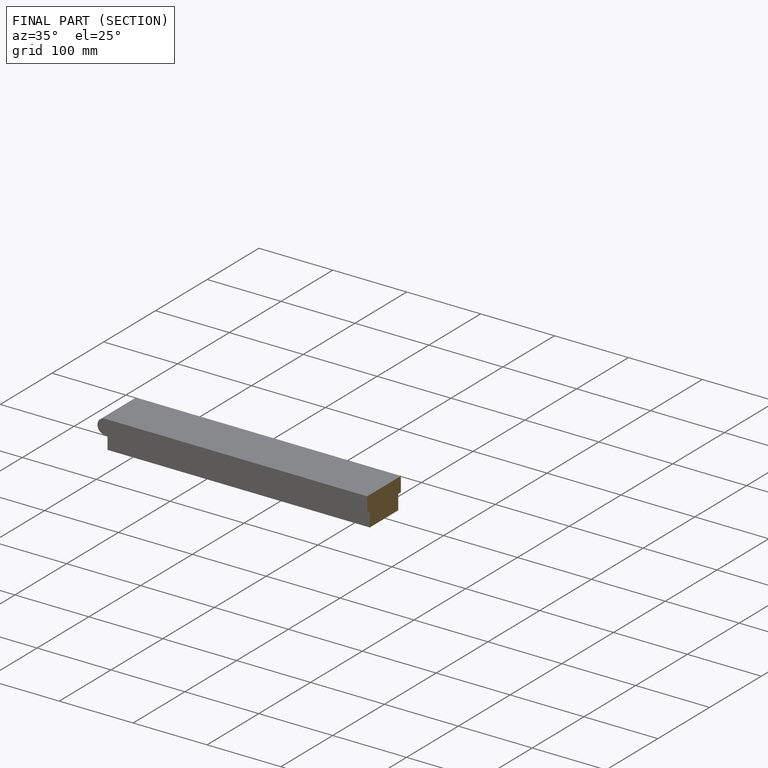
[diagram: finished part — half-section view (interior)]
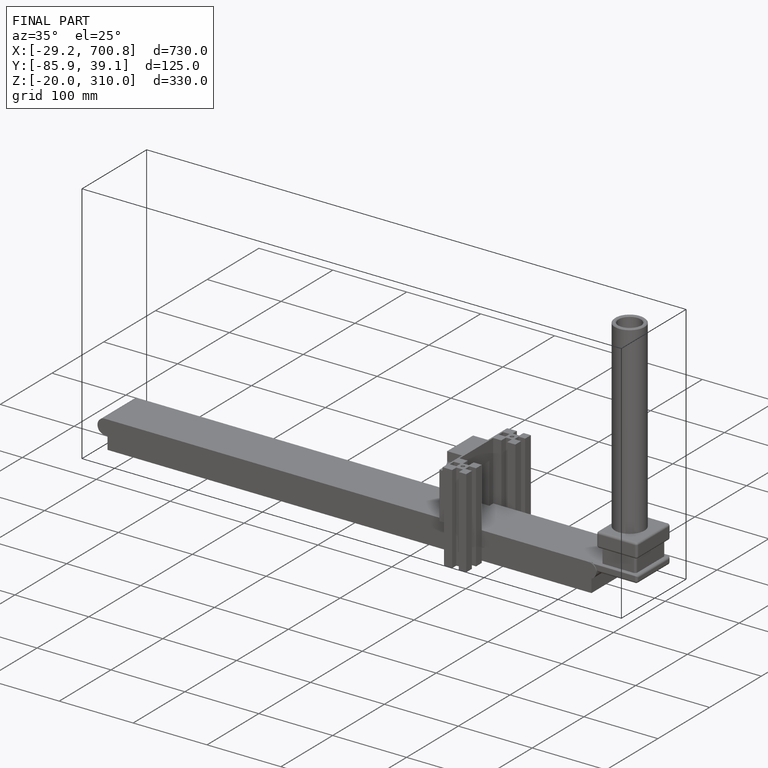
[diagram: finished part — iso view with bounding-box wireframe]
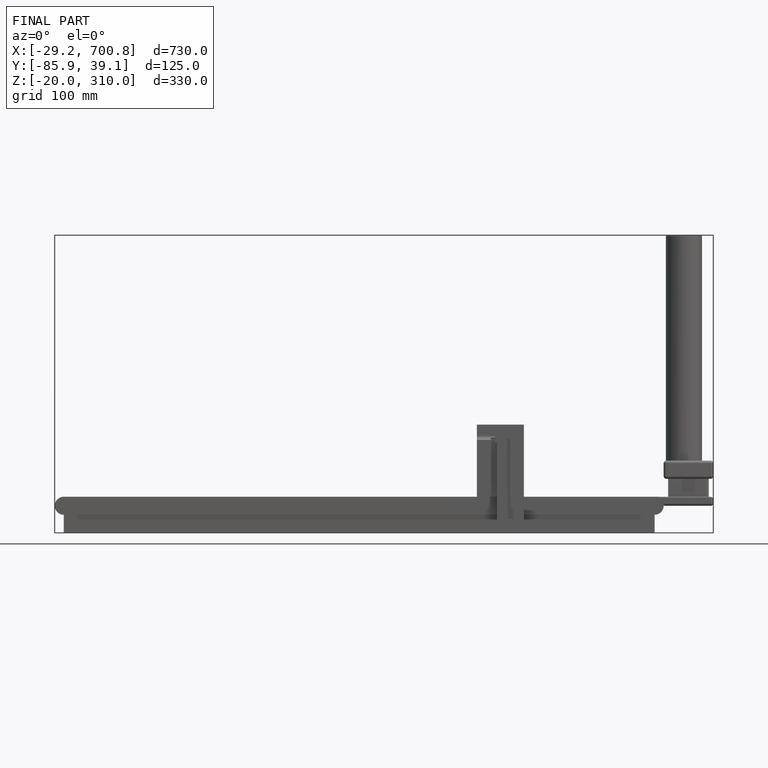
[diagram: finished part — front view with bounding-box wireframe]
